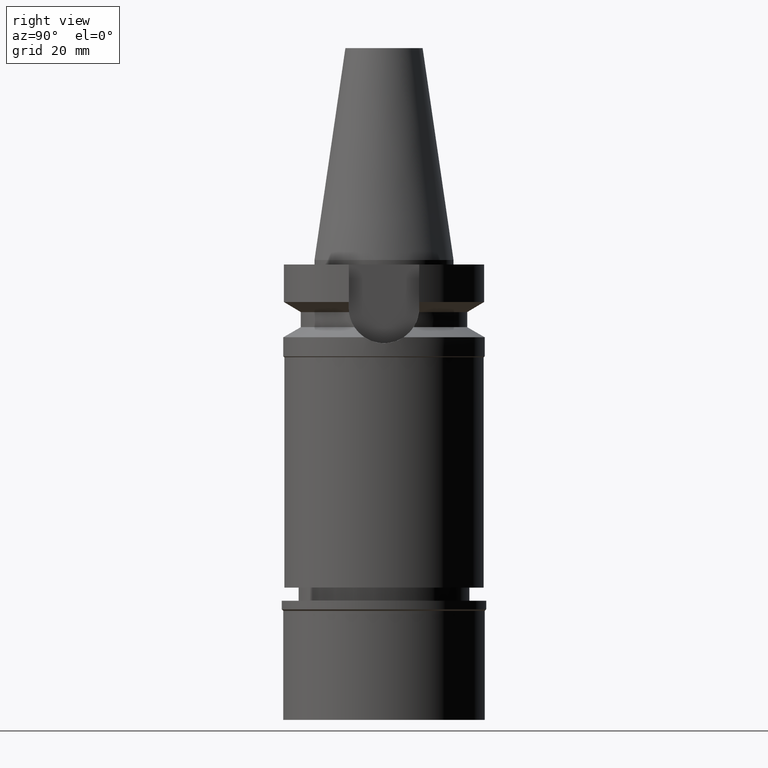
[diagram: clean part render]
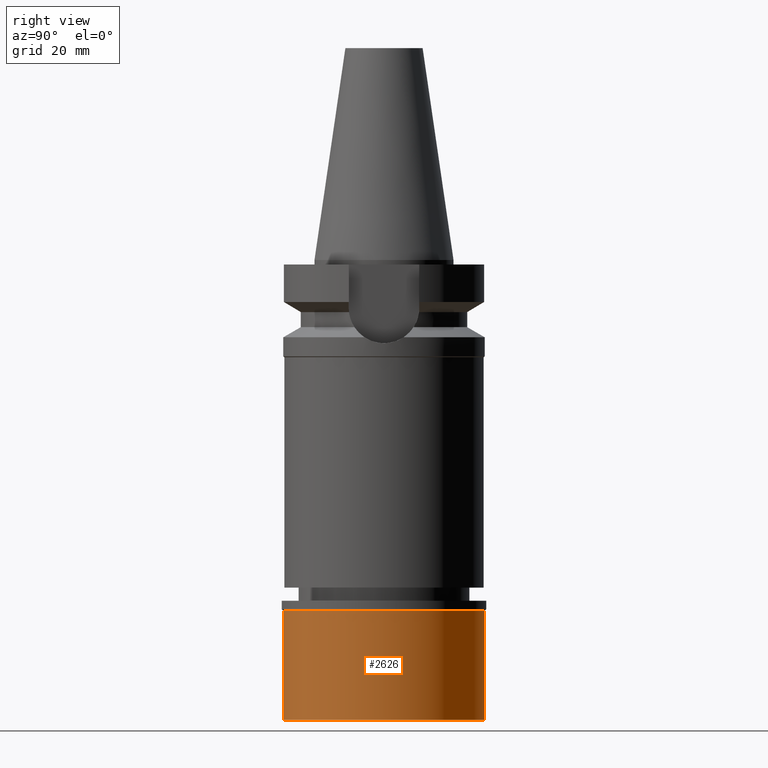
[diagram: same view with one face highlighted and labeled with its STEP entity id]
A machine part, right view. The second image highlights one B-rep face of the part: STEP entity #2626.
In plain terms, the highlighted cylindrical surface (partial cylindrical patch) has radius 23 mm, axis along (0, 0, -1).
Its self-contained STEP definition (entity closure, byte-faithful):
#135 = DIRECTION ( 'NONE',  ( 0.0000000000000000000, 0.0000000000000000000, 1.000000000000000000 ) ) ;
#157 = CARTESIAN_POINT ( 'NONE',  ( 0.0000000000000000000, -23.00000000000000000, -27.19999999999999929 ) ) ;
#339 = CARTESIAN_POINT ( 'NONE',  ( 0.0000000000000000000, 0.0000000000000000000, -27.19999999999999929 ) ) ;
#403 = DIRECTION ( 'NONE',  ( 0.0000000000000000000, 0.0000000000000000000, -1.000000000000000000 ) ) ;
#407 = ORIENTED_EDGE ( 'NONE', *, *, #957, .T. ) ;
#508 = CIRCLE ( 'NONE', #898, 23.00000000000000000 ) ;
#722 = VECTOR ( 'NONE', #2978, 1000.000000000000000 ) ;
#840 = EDGE_CURVE ( 'NONE', #924, #1376, #1972, .T. ) ;
#853 = VECTOR ( 'NONE', #1766, 1000.000000000000000 ) ;
#866 = CARTESIAN_POINT ( 'NONE',  ( 0.0000000000000000000, -23.00000000000000000, -2.299999999999999822 ) ) ;
#897 = ORIENTED_EDGE ( 'NONE', *, *, #840, .T. ) ;
#898 = AXIS2_PLACEMENT_3D ( 'NONE', #339, #135, #1883 ) ;
#924 = VERTEX_POINT ( 'NONE', #2753 ) ;
#957 = EDGE_CURVE ( 'NONE', #1376, #2574, #2284, .T. ) ;
#1056 = DIRECTION ( 'NONE',  ( 0.0000000000000000000, 1.000000000000000000, 0.0000000000000000000 ) ) ;
#1078 = DIRECTION ( 'NONE',  ( 0.0000000000000000000, 0.0000000000000000000, -1.000000000000000000 ) ) ;
#1181 = EDGE_CURVE ( 'NONE', #924, #2551, #2483, .T. ) ;
#1326 = CARTESIAN_POINT ( 'NONE',  ( 0.0000000000000000000, 0.0000000000000000000, 0.0000000000000000000 ) ) ;
#1376 = VERTEX_POINT ( 'NONE', #866 ) ;
#1447 = AXIS2_PLACEMENT_3D ( 'NONE', #2204, #1078, #1056 ) ;
#1534 = FACE_OUTER_BOUND ( 'NONE', #2970, .T. ) ;
#1569 = ORIENTED_EDGE ( 'NONE', *, *, #1181, .F. ) ;
#1689 = EDGE_CURVE ( 'NONE', #2574, #2551, #508, .T. ) ;
#1766 = DIRECTION ( 'NONE',  ( 0.0000000000000000000, 0.0000000000000000000, -1.000000000000000000 ) ) ;
#1806 = CARTESIAN_POINT ( 'NONE',  ( 0.0000000000000000000, -23.00000000000000000, -2.299999999999999822 ) ) ;
#1883 = DIRECTION ( 'NONE',  ( 0.0000000000000000000, -1.000000000000000000, 0.0000000000000000000 ) ) ;
#1972 = CIRCLE ( 'NONE', #1447, 23.00000000000000000 ) ;
#1983 = CARTESIAN_POINT ( 'NONE',  ( 0.0000000000000000000, 23.00000000000000000, -2.299999999999999822 ) ) ;
#1987 = CYLINDRICAL_SURFACE ( 'NONE', #2408, 23.00000000000000000 ) ;
#2073 = ORIENTED_EDGE ( 'NONE', *, *, #1689, .T. ) ;
#2204 = CARTESIAN_POINT ( 'NONE',  ( 0.0000000000000000000, 0.0000000000000000000, -2.299999999999999822 ) ) ;
#2284 = LINE ( 'NONE', #1806, #722 ) ;
#2408 = AXIS2_PLACEMENT_3D ( 'NONE', #1326, #403, #2687 ) ;
#2483 = LINE ( 'NONE', #1983, #853 ) ;
#2551 = VERTEX_POINT ( 'NONE', #2716 ) ;
#2574 = VERTEX_POINT ( 'NONE', #157 ) ;
#2626 = ADVANCED_FACE ( 'NONE', ( #1534 ), #1987, .T. ) ;
#2687 = DIRECTION ( 'NONE',  ( 0.0000000000000000000, -1.000000000000000000, 0.0000000000000000000 ) ) ;
#2716 = CARTESIAN_POINT ( 'NONE',  ( 0.0000000000000000000, 23.00000000000000000, -27.19999999999999929 ) ) ;
#2753 = CARTESIAN_POINT ( 'NONE',  ( 0.0000000000000000000, 23.00000000000000000, -2.299999999999999822 ) ) ;
#2970 = EDGE_LOOP ( 'NONE', ( #897, #407, #2073, #1569 ) ) ;
#2978 = DIRECTION ( 'NONE',  ( 0.0000000000000000000, 0.0000000000000000000, -1.000000000000000000 ) ) ;